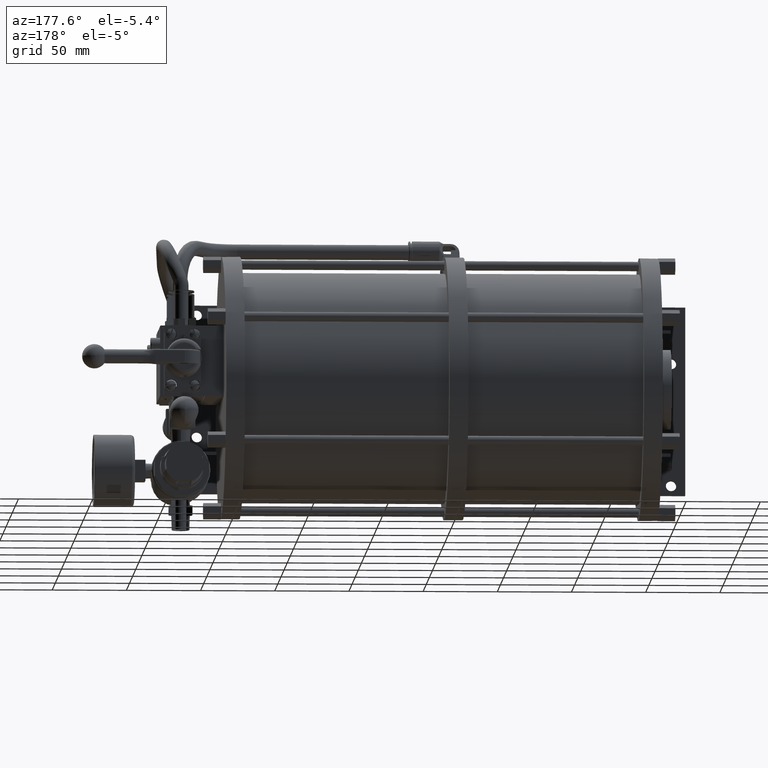
[diagram: clean part render]
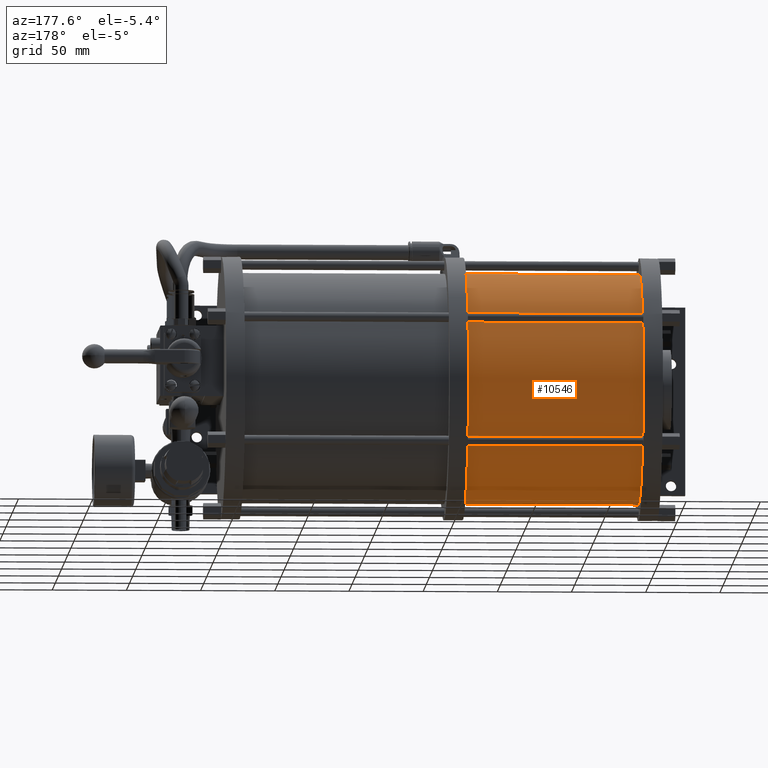
[diagram: same view with one face highlighted and labeled with its STEP entity id]
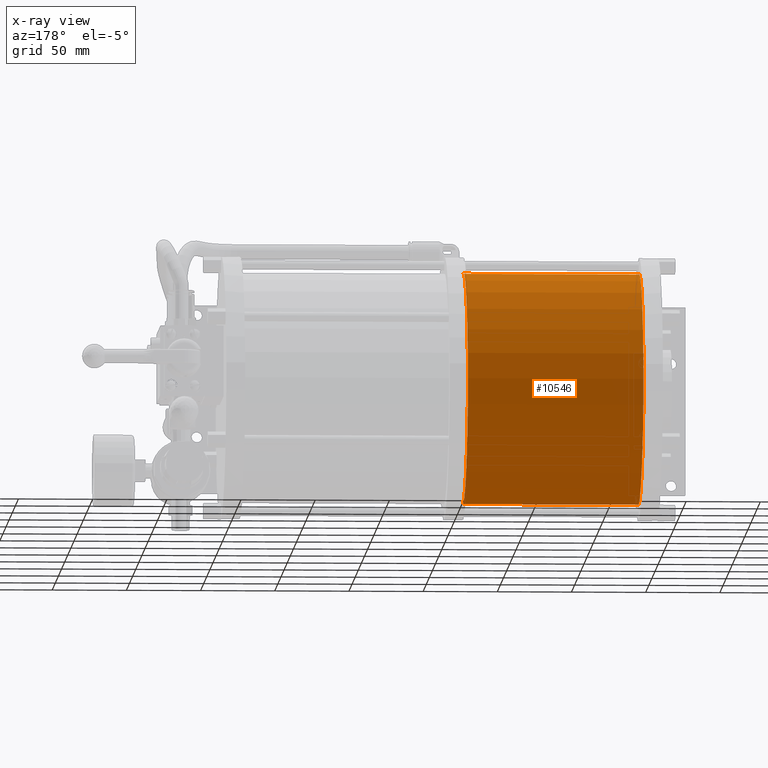
[diagram: x-ray of the same camera — body ghosted, the highlighted face saturated]
A machine part, auxiliary view. The second image highlights one B-rep face of the part: STEP entity #10546.
The next image is the same camera in x-ray: the body ghosted, the highlighted face saturated — about 0% of this face is hidden behind the body in this view.
In plain terms, the highlighted cylindrical surface (partial cylindrical patch) has radius 77.8891 mm, axis along (-1, 0, 0).
Its self-contained STEP definition (entity closure, byte-faithful):
#679=CARTESIAN_POINT('',(-1.310386E2,8.89E1,-6.35E1));
#680=DIRECTION('',(-1.E0,0.E0,0.E0));
#681=DIRECTION('',(0.E0,0.E0,1.E0));
#682=AXIS2_PLACEMENT_3D('',#679,#680,#681);
#758=CARTESIAN_POINT('',(-1.270000000001E1,8.89E1,-6.35E1));
#759=DIRECTION('',(-1.E0,0.E0,0.E0));
#760=DIRECTION('',(0.E0,0.E0,1.E0));
#761=AXIS2_PLACEMENT_3D('',#758,#759,#760);
#3863=DIRECTION('',(1.E0,0.E0,0.E0));
#3864=VECTOR('',#3863,1.183386E2);
#3865=CARTESIAN_POINT('',(-1.310386E2,8.89E1,1.43891E1));
#3866=LINE('',#3865,#3864);
#3867=DIRECTION('',(-1.E0,0.E0,0.E0));
#3868=VECTOR('',#3867,1.183386E2);
#3869=CARTESIAN_POINT('',(-1.27E1,8.889999999999E1,-1.413891E2));
#3870=LINE('',#3869,#3868);
#5017=CARTESIAN_POINT('',(-1.270000000001E1,8.89E1,1.43891E1));
#5018=CARTESIAN_POINT('',(-1.270000000001E1,8.89E1,-1.413891E2));
#5019=VERTEX_POINT('',#5017);
#5020=VERTEX_POINT('',#5018);
#5041=CARTESIAN_POINT('',(-1.310386E2,8.89E1,1.43891E1));
#5042=CARTESIAN_POINT('',(-1.310386E2,8.89E1,-1.413891E2));
#5043=VERTEX_POINT('',#5041);
#5044=VERTEX_POINT('',#5042);
#10533=CARTESIAN_POINT('',(1.4319758E2,8.89E1,-6.35E1));
#10534=DIRECTION('',(-1.E0,0.E0,0.E0));
#10535=DIRECTION('',(0.E0,0.E0,1.E0));
#10536=AXIS2_PLACEMENT_3D('',#10533,#10534,#10535);
#10537=CYLINDRICAL_SURFACE('',#10536,7.78891E1);
#10539=ORIENTED_EDGE('',*,*,#10538,.F.);
#10540=ORIENTED_EDGE('',*,*,#6278,.T.);
#10542=ORIENTED_EDGE('',*,*,#10541,.F.);
#10543=ORIENTED_EDGE('',*,*,#6346,.F.);
#10544=EDGE_LOOP('',(#10539,#10540,#10542,#10543));
#10545=FACE_OUTER_BOUND('',#10544,.F.);
#10546=ADVANCED_FACE('',(#10545),#10537,.T.);
#683=CIRCLE('',#682,7.78891E1);
#762=CIRCLE('',#761,7.78891E1);
#6278=EDGE_CURVE('',#5043,#5044,#683,.T.);
#6346=EDGE_CURVE('',#5019,#5020,#762,.T.);
#10538=EDGE_CURVE('',#5043,#5019,#3866,.T.);
#10541=EDGE_CURVE('',#5020,#5044,#3870,.T.);